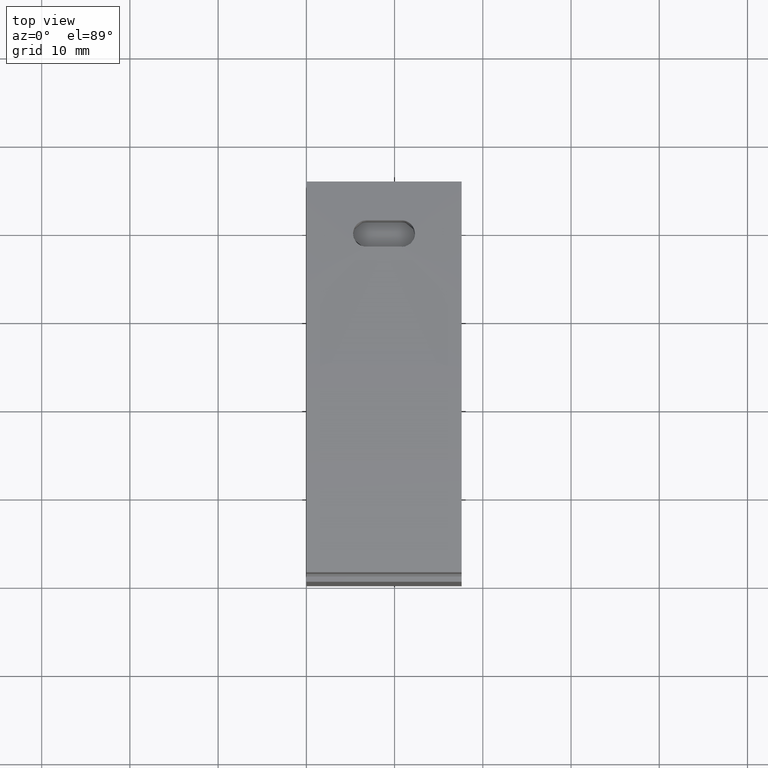
[diagram: clean part render]
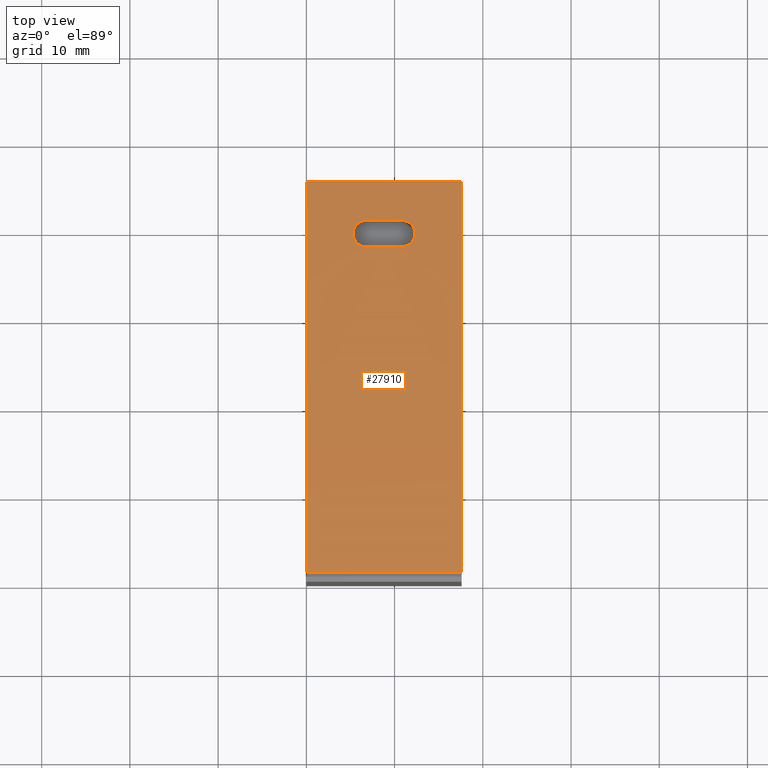
[diagram: same view with one face highlighted and labeled with its STEP entity id]
A machine part, top view. The second image highlights one B-rep face of the part: STEP entity #27910.
In plain terms, the highlighted cylindrical surface (partial cylindrical patch) has radius 200 mm, axis along (1, 0, -0).
Its self-contained STEP definition (entity closure, byte-faithful):
#5570=CARTESIAN_POINT('',(-21.6075275083422,78.8123485403435,
20.2498827057475));
#5580=VERTEX_POINT('',#5570);
#5610=CARTESIAN_POINT('',(0.292472491654939,-119.985010597046,
20.249882705745));
#5620=DIRECTION('',(2.44929359829315E-16,-1.24373101147408E-14,1.));
#5630=DIRECTION('',(2.09858061726449E-16,-1.,-1.24373101147408E-14));
#5640=AXIS2_PLACEMENT_3D('',#5610,#5620,#5630);
#5650=CIRCLE('',#5640,200.);
#5660=CARTESIAN_POINT('',(22.6924724916559,78.7566307366213,
20.2498827057475));
#5670=VERTEX_POINT('',#5660);
#5680=EDGE_CURVE('',#5670,#5580,#5650,.T.);
#25970=CARTESIAN_POINT('',(-21.6075275083425,78.8123485403437,
2.64988270574753));
#25980=VERTEX_POINT('',#25970);
#26010=CARTESIAN_POINT('',(-21.6075275083422,78.8123485403433,
38.1498827057476));
#26020=DIRECTION('',(2.44929359829315E-16,-1.24373101147408E-14,1.));
#26030=VECTOR('',#26020,1.);
#26040=LINE('',#26010,#26030);
#26050=EDGE_CURVE('',#25980,#5580,#26040,.T.);
#26180=CARTESIAN_POINT('',(0.292472491654916,-119.985010597046,
38.1498827057451));
#26190=DIRECTION('',(2.44929359829315E-16,-1.24373101147408E-14,1.));
#26200=DIRECTION('',(2.0573140676162E-16,-1.,-1.24373101147408E-14));
#26210=AXIS2_PLACEMENT_3D('',#26180,#26190,#26200);
#26220=CYLINDRICAL_SURFACE('',#26210,200.);
#26230=CARTESIAN_POINT('',(18.2774724588635,79.2046974106209,
22.0201227057475));
#26240=DIRECTION('',(2.44929359829315E-16,-1.24373101147408E-14,1.));
#26250=VECTOR('',#26240,1.);
#26260=LINE('',#26230,#26250);
#26270=CARTESIAN_POINT('',(18.2774724588603,79.2046974106213,
9.44976541149743));
#26280=VERTEX_POINT('',#26270);
#26290=CARTESIAN_POINT('',(18.2774724588603,79.2046974106213,
13.4497654114974));
#26300=VERTEX_POINT('',#26290);
#26310=EDGE_CURVE('',#26280,#26300,#26260,.T.);
#26320=ORIENTED_EDGE('',*,*,#26310,.T.);
#26330=CARTESIAN_POINT('',(18.2826525190806,79.289702557217,
9.44976541149743));
#26340=CARTESIAN_POINT('',(18.2826525190806,79.289702557217,
9.30272604050754));
#26350=CARTESIAN_POINT('',(18.260994037526,79.2910223859948,
9.15648747003491));
#26360=CARTESIAN_POINT('',(18.2183735676315,79.2936196005108,
9.01573945361407));
#26370=CARTESIAN_POINT('',(18.1877152313272,79.2954878641944,
8.91449467540583));
#26380=CARTESIAN_POINT('',(18.1327839793137,79.2988352755549,
8.77156571968153));
#26390=CARTESIAN_POINT('',(18.0312166289844,79.3050246065801,
8.61910622834541));
#26400=CARTESIAN_POINT('',(17.8945988608992,79.313349846806,
8.41403367932055));
#26410=CARTESIAN_POINT('',(17.7095127551349,79.3246286600568,
8.24570122686124));
#26420=CARTESIAN_POINT('',(17.4923255537597,79.3378636561396,
8.12896926848243));
#26430=CARTESIAN_POINT('',(17.3886042305213,79.3441842463865,
8.07322200017848));
#26440=CARTESIAN_POINT('',(17.1333998652747,79.359735939824,
7.94992799105831));
#26450=CARTESIAN_POINT('',(16.7810180752786,79.3812094501446,
7.94976557125433));
#26460=CARTESIAN_POINT('',(16.6630588872501,79.388397670176,
7.949711201509));
#26470=CARTESIAN_POINT('',(16.3791738841638,79.4056971099221,
7.96183638702184));
#26480=CARTESIAN_POINT('',(16.0682462696689,79.4246444776022,
8.12909454701043));
#26490=CARTESIAN_POINT('',(15.7581658705457,79.4435402175066,
8.29589696206819));
#26500=CARTESIAN_POINT('',(15.591991427411,79.4536665881676,
8.52511410893249));
#26510=CARTESIAN_POINT('',(15.5269848576377,79.4576279712088,
8.62351960806621));
#26520=CARTESIAN_POINT('',(15.4463246771422,79.4625432570366,
8.74562119486832));
#26530=CARTESIAN_POINT('',(15.3839822077354,79.4663422946095,
8.87885252901698));
#26540=CARTESIAN_POINT('',(15.3419321762656,79.4689047476374,
9.01897945074996));
#26550=CARTESIAN_POINT('',(15.3116446492925,79.4707504148697,
9.11990917121148));
#26560=CARTESIAN_POINT('',(15.2786872624612,79.4727587785433,
9.26821623181565));
#26570=CARTESIAN_POINT('',(15.2786872624612,79.4727587785433,
9.44976541149743));
#26580=B_SPLINE_CURVE_WITH_KNOTS('',3,(#26330,#26340,#26350,#26360,
#26370,#26380,#26390,#26400,#26410,#26420,#26430,#26440,#26450,#26460,
#26470,#26480,#26490,#26500,#26510,#26520,#26530,#26540,#26550,#26560,
#26570),.UNSPECIFIED.,.F.,.F.,(4,3,3,3,3,3,3,3,4),(0.,0.439969879592551,
0.879878003451412,1.61456901837024,2.35497398152368,3.09687298444902,
3.8363222827369,4.2742544220507,4.71083845677836),.UNSPECIFIED.);
#26590=DIRECTION('',(-0.0608253635122366,-0.998148423408866,
-1.23993835651293E-14));
#26600=VECTOR('',#26590,1.);
#26610=SURFACE_OF_LINEAR_EXTRUSION('',#26580,#26600);
#26620=CARTESIAN_POINT('',(0.292472491654939,-119.985010597046,
22.0201227057451));
#26630=DIRECTION('',(2.44929359829315E-16,-1.24373101147408E-14,1.));
#26640=DIRECTION('',(2.09858061726449E-16,-1.,-1.24373101147408E-14));
#26650=AXIS2_PLACEMENT_3D('',#26620,#26630,#26640);
#26660=CYLINDRICAL_SURFACE('',#26650,200.);
#26670=CARTESIAN_POINT('',(18.2774724588603,79.2046974106213,
9.44976541149743));
#26680=CARTESIAN_POINT('',(18.2774724588603,79.2046974106213,
9.23041176601254));
#26690=CARTESIAN_POINT('',(18.2290120330729,79.2090888318604,
9.0126373827215));
#26700=CARTESIAN_POINT('',(18.1361208145996,79.2174096054385,
8.81409674445793));
#26710=CARTESIAN_POINT('',(18.0431771616374,79.2257350758601,
8.6154440355697));
#26720=CARTESIAN_POINT('',(17.9081085536459,79.2377746756624,
8.43972115049351));
#26730=CARTESIAN_POINT('',(17.7390331698051,79.2525800340991,
8.29850470446936));
#26740=CARTESIAN_POINT('',(17.6044583797609,79.2643642924453,
8.18610411046935));
#26750=CARTESIAN_POINT('',(17.4522624611404,79.2775513623842,
8.09874723932255));
#26760=CARTESIAN_POINT('',(17.2885691008902,79.2915126063901,
8.03949207839199));
#26770=CARTESIAN_POINT('',(17.1243762524997,79.3055164512432,
7.9800561083554));
#26780=CARTESIAN_POINT('',(16.9517511068465,79.320028530986,
7.94989592292809));
#26790=CARTESIAN_POINT('',(16.7786017555827,79.3343500829776,
7.94976583625825));
#26800=CARTESIAN_POINT('',(16.691975749931,79.3415151045887,
7.94970075435922));
#26810=CARTESIAN_POINT('',(16.6058188678221,79.3485845481068,
7.95702890280443));
#26820=CARTESIAN_POINT('',(16.5199433209606,79.3555753118054,
7.97202125967151));
#26830=CARTESIAN_POINT('',(16.4341628454679,79.3625583361476,
7.98699701875332));
#26840=CARTESIAN_POINT('',(16.3492534116542,79.3694139383504,
8.0095286240738));
#26850=CARTESIAN_POINT('',(16.2670828609233,79.3759981873956,
8.03925585604971));
#26860=CARTESIAN_POINT('',(16.1028828821912,79.3891553774544,
8.09865926535871));
#26870=CARTESIAN_POINT('',(15.9507537841949,79.4011385573721,
8.1858881612668));
#26880=CARTESIAN_POINT('',(15.8160773945571,79.4116235039807,
8.29836145632042));
#26890=CARTESIAN_POINT('',(15.6468045080878,79.4248018879699,
8.43972758111514));
#26900=CARTESIAN_POINT('',(15.5118439558159,79.4350972985263,
8.61528756708727));
#26910=CARTESIAN_POINT('',(15.418832798707,79.442152106186,
8.81407816617565));
#26920=CARTESIAN_POINT('',(15.3259152267439,79.4491998155016,
9.01266874789239));
#26930=CARTESIAN_POINT('',(15.2774724588603,79.452823767407,
9.23042583322303));
#26940=CARTESIAN_POINT('',(15.2774724588603,79.452823767407,
9.44976541149743));
#26950=B_SPLINE_CURVE_WITH_KNOTS('',3,(#26670,#26680,#26690,#26700,
#26710,#26720,#26730,#26740,#26750,#26760,#26770,#26780,#26790,#26800,
#26810,#26820,#26830,#26840,#26850,#26860,#26870,#26880,#26890,#26900,
#26910,#26920,#26930,#26940),.UNSPECIFIED.,.F.,.F.,(4,3,3,3,3,3,3,3,3,4)
,(0.,0.656582376937362,1.31354236119839,1.83725530112336,
2.35941686724867,2.62022243937719,2.88299550867861,3.40699368666189,
4.06391564894202,4.72047112775628),.UNSPECIFIED.);
#26960=SURFACE_CURVE('',#26950,(#26610,#26660),.CURVE_3D.);
#26970=CARTESIAN_POINT('',(15.2774724588603,79.452823767407,
9.44976541149743));
#26980=VERTEX_POINT('',#26970);
#26990=EDGE_CURVE('',#26280,#26980,#26960,.T.);
#27000=ORIENTED_EDGE('',*,*,#26990,.F.);
#27010=CARTESIAN_POINT('',(15.2774724588602,79.4528237674069,
22.0201227057475));
#27020=DIRECTION('',(2.44929359829315E-16,-1.24373101147408E-14,1.));
#27030=VECTOR('',#27020,1.);
#27040=LINE('',#27010,#27030);
#27050=CARTESIAN_POINT('',(15.2774724588603,79.452823767407,
13.4497654114974));
#27060=VERTEX_POINT('',#27050);
#27070=EDGE_CURVE('',#26980,#27060,#27040,.T.);
#27080=ORIENTED_EDGE('',*,*,#27070,.F.);
#27090=CARTESIAN_POINT('',(15.2786872624612,79.4727587785432,
13.4497654114974));
#27100=CARTESIAN_POINT('',(15.2786872624612,79.4727587785432,
13.5556893674856));
#27110=CARTESIAN_POINT('',(15.2898624067131,79.4720777854209,
13.7086593840567));
#27120=CARTESIAN_POINT('',(15.343045109574,79.4688369274901,
13.8842428431208));
#27130=CARTESIAN_POINT('',(15.3737341515526,79.4669667926581,
13.9855631569841));
#27140=CARTESIAN_POINT('',(15.4287409644838,79.4636147767517,
14.1286686217952));
#27150=CARTESIAN_POINT('',(15.5304762358671,79.4574152129205,
14.281272270376));
#27160=CARTESIAN_POINT('',(15.5960217140493,79.4534209897734,
14.3795909653829));
#27170=CARTESIAN_POINT('',(15.761721832058,79.4433235236296,
14.6057284513077));
#27180=CARTESIAN_POINT('',(16.0688540681135,79.4246074394618,
14.7707630506896));
#27190=CARTESIAN_POINT('',(16.3790209479746,79.4057064295774,
14.9374282871909));
#27200=CARTESIAN_POINT('',(16.6621372178457,79.3884538350461,
14.9497596670989));
#27210=CARTESIAN_POINT('',(16.780251744975,79.3812561489302,
14.9497654097198));
#27220=CARTESIAN_POINT('',(16.8981117762001,79.3740739713355,
14.9497711399673));
#27230=CARTESIAN_POINT('',(17.1819655579244,79.3567764341629,
14.9375550484153));
#27240=CARTESIAN_POINT('',(17.4929331756499,79.3378266287581,
14.7702347952612));
#27250=CARTESIAN_POINT('',(17.5966385924665,79.3315070078198,
14.7144347196066));
#27260=CARTESIAN_POINT('',(17.8405058646106,79.3166461763753,
14.5693485209953));
#27270=CARTESIAN_POINT('',(18.0347084573302,79.3048118208625,
14.2751591229684));
#27280=CARTESIAN_POINT('',(18.0928330212173,79.3012698148396,
14.1871086483527));
#27290=CARTESIAN_POINT('',(18.1672226548084,79.2967366448234,
14.0543081009308));
#27300=CARTESIAN_POINT('',(18.2194863096778,79.2935517920186,
13.8800995758208));
#27310=CARTESIAN_POINT('',(18.2613727964484,79.2909993051095,
13.7404808847709));
#27320=CARTESIAN_POINT('',(18.2826525190806,79.289702557217,
13.5955133517133));
#27330=CARTESIAN_POINT('',(18.2826525190806,79.289702557217,
13.4497654114974));
#27340=B_SPLINE_CURVE_WITH_KNOTS('',3,(#27090,#27100,#27110,#27120,
#27130,#27140,#27150,#27160,#27170,#27180,#27190,#27200,#27210,#27220,
#27230,#27240,#27250,#27260,#27270,#27280,#27290,#27300,#27310,#27320,
#27330),.UNSPECIFIED.,.F.,.F.,(4,3,3,3,3,3,3,3,4),(0.,0.440429854591862,
0.880816933089621,1.6146820416064,2.35513325907616,3.09698585736443,
3.83726507108253,4.27471457446176,4.7108383745688),.UNSPECIFIED.);
#27350=DIRECTION('',(-0.0608253635122366,-0.998148423408866,
-1.23993835651293E-14));
#27360=VECTOR('',#27350,1.);
#27370=SURFACE_OF_LINEAR_EXTRUSION('',#27340,#27360);
#27380=CARTESIAN_POINT('',(15.2774724588603,79.452823767407,
13.4497654114974));
#27390=CARTESIAN_POINT('',(15.2774724588603,79.452823767407,
13.6759740601036));
#27400=CARTESIAN_POINT('',(15.3289408067112,79.4489747867615,
13.9007182287391));
#27410=CARTESIAN_POINT('',(15.4281815611966,79.4414427910698,
14.1050624338275));
#27420=CARTESIAN_POINT('',(15.5272822770989,79.4339214237737,
14.3091182889019));
#27430=CARTESIAN_POINT('',(15.6711859029186,79.4229321222046,
14.4881547121241));
#27440=CARTESIAN_POINT('',(15.8507669819686,79.4089197833765,
14.6292736259254));
#27450=CARTESIAN_POINT('',(15.9826139850427,79.3986320354116,
14.7328820125116));
#27460=CARTESIAN_POINT('',(16.1297443462081,79.3870183995857,
14.8130199862548));
#27470=CARTESIAN_POINT('',(16.2877485139479,79.3743411900492,
14.8675806610055));
#27480=CARTESIAN_POINT('',(16.4461880815493,79.3616290469071,
14.9222916843868));
#27490=CARTESIAN_POINT('',(16.6117277381674,79.3481515015952,
14.9497483104955));
#27500=CARTESIAN_POINT('',(16.7773070517083,79.3344571664611,
14.9497654027035));
#27510=CARTESIAN_POINT('',(16.9430213015348,79.3207516713417,
14.9497825088405));
#27520=CARTESIAN_POINT('',(17.1086797823624,79.306836923753,
14.9223204273041));
#27530=CARTESIAN_POINT('',(17.2672153715913,79.2933326923345,
14.8675741123831));
#27540=CARTESIAN_POINT('',(17.3462598825547,79.2865995961659,
14.8402780603671));
#27550=CARTESIAN_POINT('',(17.4227583197878,79.2800356319843,
14.8063693050789));
#27560=CARTESIAN_POINT('',(17.4955710465825,79.2737493110432,
14.7667087907044));
#27570=CARTESIAN_POINT('',(17.5684613229914,79.2674562948199,
14.7270060356707));
#27580=CARTESIAN_POINT('',(17.6384637820804,79.2613719536531,
14.6809625331823));
#27590=CARTESIAN_POINT('',(17.7043442762084,79.2556145800459,
14.6291549399858));
#27600=CARTESIAN_POINT('',(17.8835975333701,79.2399494277815,
14.4881924297756));
#27610=CARTESIAN_POINT('',(18.0274560094946,79.2271382578531,
14.3093503732001));
#27620=CARTESIAN_POINT('',(18.1265171609506,79.2182696237719,
14.1055692345004));
#27630=CARTESIAN_POINT('',(18.2256665613802,79.2093930890369,
13.9016065566598));
#27640=CARTESIAN_POINT('',(18.2774724588603,79.2046974106213,
13.6766334475292));
#27650=CARTESIAN_POINT('',(18.2774724588603,79.2046974106213,
13.4497654114974));
#27660=B_SPLINE_CURVE_WITH_KNOTS('',3,(#27380,#27390,#27400,#27410,
#27420,#27430,#27440,#27450,#27460,#27470,#27480,#27490,#27500,#27510,
#27520,#27530,#27540,#27550,#27560,#27570,#27580,#27590,#27600,#27610,
#27620,#27630,#27640,#27650),.UNSPECIFIED.,.F.,.F.,(4,3,3,3,3,3,3,3,3,4)
,(0.,0.678291301311235,1.35820682069489,1.85945812959771,
2.35975317104183,2.86049728345821,3.11119131891268,3.36215551510753,
4.04155158574881,4.72045857870285),.UNSPECIFIED.);
#27670=SURFACE_CURVE('',#27660,(#27370,#26660),.CURVE_3D.);
#27680=EDGE_CURVE('',#27060,#26300,#27670,.T.);
#27690=ORIENTED_EDGE('',*,*,#27680,.F.);
#27700=EDGE_LOOP('',(#27690,#27080,#27000,#26320));
#27710=FACE_BOUND('',#27700,.T.);
#27720=ORIENTED_EDGE('',*,*,#26050,.T.);
#27730=CARTESIAN_POINT('',(0.292472491654934,-119.985010597046,
2.64988270574505));
#27740=DIRECTION('',(2.44929359829315E-16,-1.24373101147408E-14,1.));
#27750=DIRECTION('',(2.09858061726449E-16,-1.,-1.24373101147408E-14));
#27760=AXIS2_PLACEMENT_3D('',#27730,#27740,#27750);
#27770=CIRCLE('',#27760,200.);
#27780=CARTESIAN_POINT('',(22.6924724916559,78.7566307366215,
2.64988270574752));
#27790=VERTEX_POINT('',#27780);
#27800=EDGE_CURVE('',#27790,#25980,#27770,.T.);
#27810=ORIENTED_EDGE('',*,*,#27800,.T.);
#27820=CARTESIAN_POINT('',(22.6924724916559,78.7566307366212,
22.0201227057475));
#27830=DIRECTION('',(2.44929359829315E-16,-1.24373101147408E-14,1.));
#27840=VECTOR('',#27830,1.);
#27850=LINE('',#27820,#27840);
#27860=EDGE_CURVE('',#27790,#5670,#27850,.T.);
#27870=ORIENTED_EDGE('',*,*,#27860,.F.);
#27880=ORIENTED_EDGE('',*,*,#5680,.F.);
#27890=EDGE_LOOP('',(#27880,#27870,#27810,#27720));
#27900=FACE_OUTER_BOUND('',#27890,.T.);
#27910=ADVANCED_FACE('',(#27710,#27900),#26220,.T.);